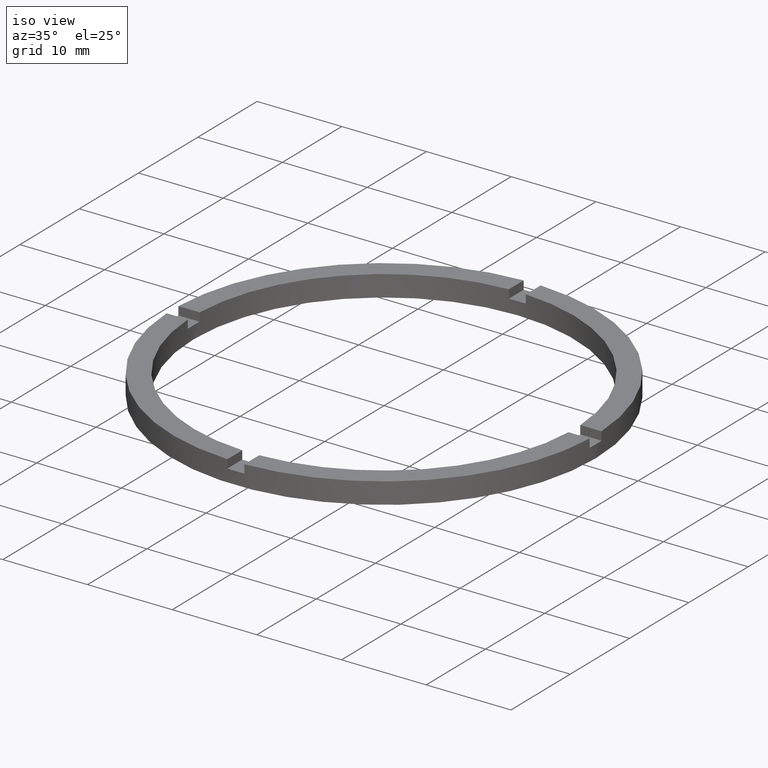
[diagram: clean part render]
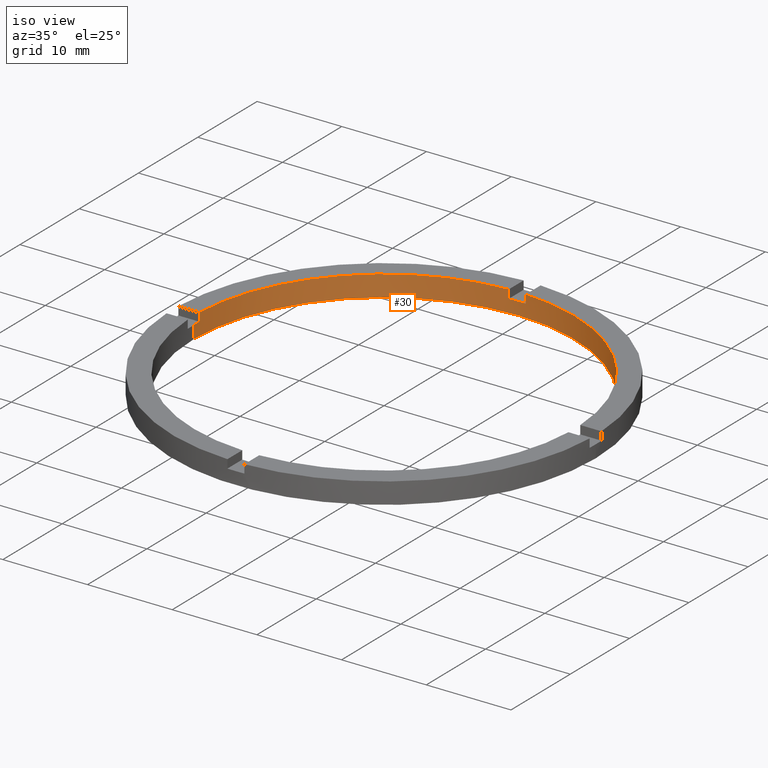
[diagram: same view with one face highlighted and labeled with its STEP entity id]
A machine part, iso view. The second image highlights one B-rep face of the part: STEP entity #30.
In plain terms, the highlighted cylindrical surface (partial cylindrical patch) has radius 22.5 mm, axis along (-0, -0, -1).
Its self-contained STEP definition (entity closure, byte-faithful):
#1 = VERTEX_POINT ( 'NONE', #306 ) ;
#2 = CARTESIAN_POINT ( 'NONE',  ( -22.47776679298902636, 0.9999999999999744649, 2.500000000000000000 ) ) ;
#9 = ORIENTED_EDGE ( 'NONE', *, *, #651, .F. ) ;
#10 = EDGE_CURVE ( 'NONE', #615, #525, #723, .T. ) ;
#11 = CARTESIAN_POINT ( 'NONE',  ( 0.9999999999999740208, 22.47776679298902636, 2.500000000000000000 ) ) ;
#12 = DIRECTION ( 'NONE',  ( 0.000000000000000000, 0.000000000000000000, 1.000000000000000000 ) ) ;
#15 = DIRECTION ( 'NONE',  ( 0.000000000000000000, 0.000000000000000000, 1.000000000000000000 ) ) ;
#26 = DIRECTION ( 'NONE',  ( 1.000000000000000000, 0.000000000000000000, 0.000000000000000000 ) ) ;
#30 = ADVANCED_FACE ( 'NONE', ( #714 ), #198, .F. ) ;
#36 = CARTESIAN_POINT ( 'NONE',  ( 0.9999999999999740208, 22.47776679298902636, 2.500000000000000000 ) ) ;
#39 = EDGE_CURVE ( 'NONE', #1, #451, #742, .T. ) ;
#44 = AXIS2_PLACEMENT_3D ( 'NONE', #357, #605, #600 ) ;
#55 = ORIENTED_EDGE ( 'NONE', *, *, #10, .T. ) ;
#61 = ORIENTED_EDGE ( 'NONE', *, *, #571, .F. ) ;
#62 = DIRECTION ( 'NONE',  ( 0.000000000000000000, 0.000000000000000000, 1.000000000000000000 ) ) ;
#63 = DIRECTION ( 'NONE',  ( 0.000000000000000000, 0.000000000000000000, 1.000000000000000000 ) ) ;
#75 = ORIENTED_EDGE ( 'NONE', *, *, #578, .F. ) ;
#85 = EDGE_CURVE ( 'NONE', #525, #295, #477, .T. ) ;
#99 = DIRECTION ( 'NONE',  ( 1.000000000000000000, 0.000000000000000000, 0.000000000000000000 ) ) ;
#110 = VERTEX_POINT ( 'NONE', #779 ) ;
#111 = VERTEX_POINT ( 'NONE', #766 ) ;
#112 = EDGE_LOOP ( 'NONE', ( #195, #169, #534, #174, #9, #209, #467, #188, #61, #55, #717, #75 ) ) ;
#118 = CARTESIAN_POINT ( 'NONE',  ( 0.000000000000000000, 0.000000000000000000, 2.500000000000000000 ) ) ;
#135 = CIRCLE ( 'NONE', #325, 22.50000000000000355 ) ;
#137 = LINE ( 'NONE', #226, #403 ) ;
#143 = CARTESIAN_POINT ( 'NONE',  ( -1.000000000000025979, 22.47776679298902636, 1.500000000000000000 ) ) ;
#155 = VERTEX_POINT ( 'NONE', #775 ) ;
#158 = CARTESIAN_POINT ( 'NONE',  ( -22.50000000000000355, 0.000000000000000000, 2.500000000000000000 ) ) ;
#165 = DIRECTION ( 'NONE',  ( 1.000000000000000000, 0.000000000000000000, 0.000000000000000000 ) ) ;
#169 = ORIENTED_EDGE ( 'NONE', *, *, #495, .T. ) ;
#174 = ORIENTED_EDGE ( 'NONE', *, *, #321, .T. ) ;
#175 = AXIS2_PLACEMENT_3D ( 'NONE', #425, #609, #26 ) ;
#188 = ORIENTED_EDGE ( 'NONE', *, *, #628, .T. ) ;
#191 = DIRECTION ( 'NONE',  ( 0.000000000000000000, 0.000000000000000000, 1.000000000000000000 ) ) ;
#195 = ORIENTED_EDGE ( 'NONE', *, *, #599, .F. ) ;
#198 = CYLINDRICAL_SURFACE ( 'NONE', #44, 22.50000000000000355 ) ;
#209 = ORIENTED_EDGE ( 'NONE', *, *, #39, .T. ) ;
#211 = DIRECTION ( 'NONE',  ( 0.000000000000000000, 0.000000000000000000, 1.000000000000000000 ) ) ;
#226 = CARTESIAN_POINT ( 'NONE',  ( 22.47776679298903346, 0.9999999999998423483, 2.500000000000000000 ) ) ;
#246 = DIRECTION ( 'NONE',  ( -0.000000000000000000, -0.000000000000000000, -1.000000000000000000 ) ) ;
#247 = CARTESIAN_POINT ( 'NONE',  ( 22.47776679298903346, 0.9999999999998423483, 1.500000000000000000 ) ) ;
#256 = CARTESIAN_POINT ( 'NONE',  ( 0.000000000000000000, 0.000000000000000000, 1.500000000000000000 ) ) ;
#295 = VERTEX_POINT ( 'NONE', #371 ) ;
#301 = CARTESIAN_POINT ( 'NONE',  ( 0.000000000000000000, 0.000000000000000000, 0.000000000000000000 ) ) ;
#306 = CARTESIAN_POINT ( 'NONE',  ( 0.9999999999999740208, 22.47776679298902636, 1.500000000000000000 ) ) ;
#314 = DIRECTION ( 'NONE',  ( 0.000000000000000000, -0.000000000000000000, 1.000000000000000000 ) ) ;
#321 = EDGE_CURVE ( 'NONE', #110, #643, #421, .T. ) ;
#325 = AXIS2_PLACEMENT_3D ( 'NONE', #301, #63, #99 ) ;
#328 = CARTESIAN_POINT ( 'NONE',  ( -22.47776679298902636, 0.9999999999999744649, 1.500000000000000000 ) ) ;
#334 = DIRECTION ( 'NONE',  ( -0.000000000000000000, -0.000000000000000000, -1.000000000000000000 ) ) ;
#345 = AXIS2_PLACEMENT_3D ( 'NONE', #256, #191, #561 ) ;
#346 = CARTESIAN_POINT ( 'NONE',  ( -22.47776679298902636, 0.9999999999999744649, 2.500000000000000000 ) ) ;
#347 = AXIS2_PLACEMENT_3D ( 'NONE', #718, #12, #462 ) ;
#357 = CARTESIAN_POINT ( 'NONE',  ( 0.000000000000000000, 0.000000000000000000, 2.500000000000000000 ) ) ;
#367 = CARTESIAN_POINT ( 'NONE',  ( -22.50000000000000355, 0.000000000000000000, 1.500000000000000000 ) ) ;
#371 = CARTESIAN_POINT ( 'NONE',  ( -22.50000000000000355, 0.000000000000000000, 0.000000000000000000 ) ) ;
#392 = CARTESIAN_POINT ( 'NONE',  ( 0.000000000000000000, 0.000000000000000000, 1.500000000000000000 ) ) ;
#398 = EDGE_CURVE ( 'NONE', #111, #451, #429, .T. ) ;
#399 = LINE ( 'NONE', #346, #661 ) ;
#403 = VECTOR ( 'NONE', #334, 1000.000000000000000 ) ;
#410 = VERTEX_POINT ( 'NONE', #2 ) ;
#419 = VERTEX_POINT ( 'NONE', #585 ) ;
#421 = CIRCLE ( 'NONE', #347, 22.50000000000000355 ) ;
#425 = CARTESIAN_POINT ( 'NONE',  ( 0.000000000000000000, 0.000000000000000000, 1.500000000000000000 ) ) ;
#429 = LINE ( 'NONE', #577, #680 ) ;
#431 = CIRCLE ( 'NONE', #175, 22.50000000000000355 ) ;
#449 = DIRECTION ( 'NONE',  ( 1.000000000000000000, 0.000000000000000000, 0.000000000000000000 ) ) ;
#451 = VERTEX_POINT ( 'NONE', #143 ) ;
#460 = VERTEX_POINT ( 'NONE', #247 ) ;
#462 = DIRECTION ( 'NONE',  ( 1.000000000000000000, 0.000000000000000000, 0.000000000000000000 ) ) ;
#467 = ORIENTED_EDGE ( 'NONE', *, *, #398, .F. ) ;
#477 = LINE ( 'NONE', #158, #740 ) ;
#478 = LINE ( 'NONE', #11, #732 ) ;
#488 = CIRCLE ( 'NONE', #602, 22.50000000000000355 ) ;
#495 = EDGE_CURVE ( 'NONE', #155, #460, #431, .T. ) ;
#515 = AXIS2_PLACEMENT_3D ( 'NONE', #392, #314, #165 ) ;
#525 = VERTEX_POINT ( 'NONE', #367 ) ;
#534 = ORIENTED_EDGE ( 'NONE', *, *, #587, .F. ) ;
#561 = DIRECTION ( 'NONE',  ( 1.000000000000000000, 0.000000000000000000, 0.000000000000000000 ) ) ;
#571 = EDGE_CURVE ( 'NONE', #615, #410, #399, .T. ) ;
#577 = CARTESIAN_POINT ( 'NONE',  ( -1.000000000000025979, 22.47776679298902636, 2.500000000000000000 ) ) ;
#578 = EDGE_CURVE ( 'NONE', #419, #295, #135, .T. ) ;
#585 = CARTESIAN_POINT ( 'NONE',  ( 22.50000000000000355, 2.755455298081545172E-15, 0.000000000000000000 ) ) ;
#587 = EDGE_CURVE ( 'NONE', #110, #460, #137, .T. ) ;
#599 = EDGE_CURVE ( 'NONE', #155, #419, #673, .T. ) ;
#600 = DIRECTION ( 'NONE',  ( -1.000000000000000000, 0.000000000000000000, 0.000000000000000000 ) ) ;
#602 = AXIS2_PLACEMENT_3D ( 'NONE', #118, #211, #449 ) ;
#605 = DIRECTION ( 'NONE',  ( -0.000000000000000000, -0.000000000000000000, -1.000000000000000000 ) ) ;
#609 = DIRECTION ( 'NONE',  ( 0.000000000000000000, 0.000000000000000000, 1.000000000000000000 ) ) ;
#615 = VERTEX_POINT ( 'NONE', #328 ) ;
#616 = CARTESIAN_POINT ( 'NONE',  ( 22.50000000000000355, 2.755455298081545172E-15, 2.500000000000000000 ) ) ;
#628 = EDGE_CURVE ( 'NONE', #111, #410, #488, .T. ) ;
#643 = VERTEX_POINT ( 'NONE', #36 ) ;
#651 = EDGE_CURVE ( 'NONE', #1, #643, #478, .T. ) ;
#661 = VECTOR ( 'NONE', #15, 1000.000000000000000 ) ;
#664 = VECTOR ( 'NONE', #698, 1000.000000000000000 ) ;
#673 = LINE ( 'NONE', #616, #664 ) ;
#680 = VECTOR ( 'NONE', #681, 1000.000000000000000 ) ;
#681 = DIRECTION ( 'NONE',  ( -0.000000000000000000, -0.000000000000000000, -1.000000000000000000 ) ) ;
#698 = DIRECTION ( 'NONE',  ( -0.000000000000000000, -0.000000000000000000, -1.000000000000000000 ) ) ;
#714 = FACE_OUTER_BOUND ( 'NONE', #112, .T. ) ;
#717 = ORIENTED_EDGE ( 'NONE', *, *, #85, .T. ) ;
#718 = CARTESIAN_POINT ( 'NONE',  ( 0.000000000000000000, 0.000000000000000000, 2.500000000000000000 ) ) ;
#723 = CIRCLE ( 'NONE', #345, 22.50000000000000355 ) ;
#732 = VECTOR ( 'NONE', #62, 1000.000000000000000 ) ;
#740 = VECTOR ( 'NONE', #246, 1000.000000000000000 ) ;
#742 = CIRCLE ( 'NONE', #515, 22.50000000000000355 ) ;
#766 = CARTESIAN_POINT ( 'NONE',  ( -1.000000000000025979, 22.47776679298902636, 2.500000000000000000 ) ) ;
#775 = CARTESIAN_POINT ( 'NONE',  ( 22.50000000000000355, 2.755455298081545172E-15, 1.500000000000000000 ) ) ;
#779 = CARTESIAN_POINT ( 'NONE',  ( 22.47776679298903346, 0.9999999999998423483, 2.500000000000000000 ) ) ;